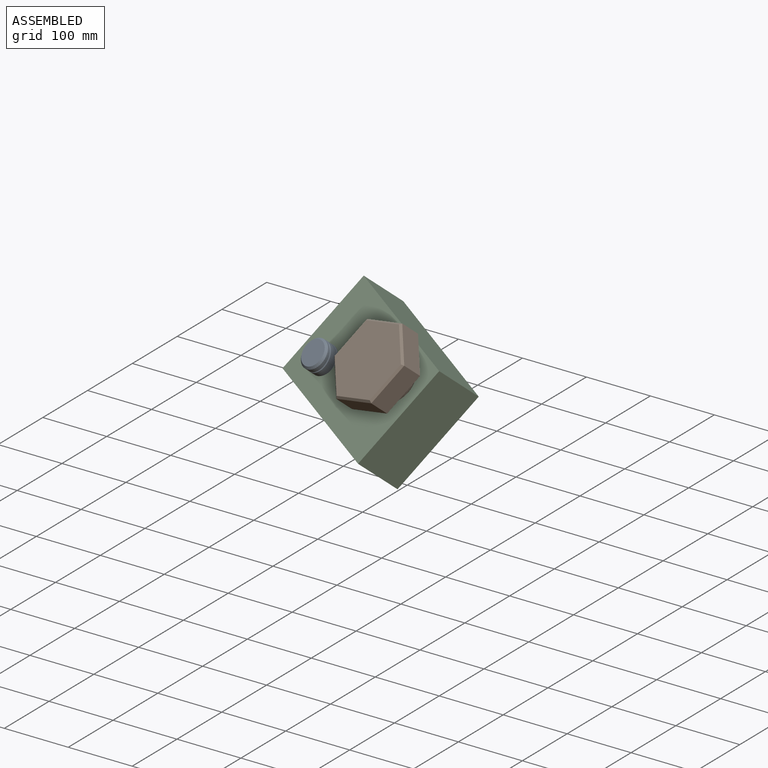
[diagram: assembled view]
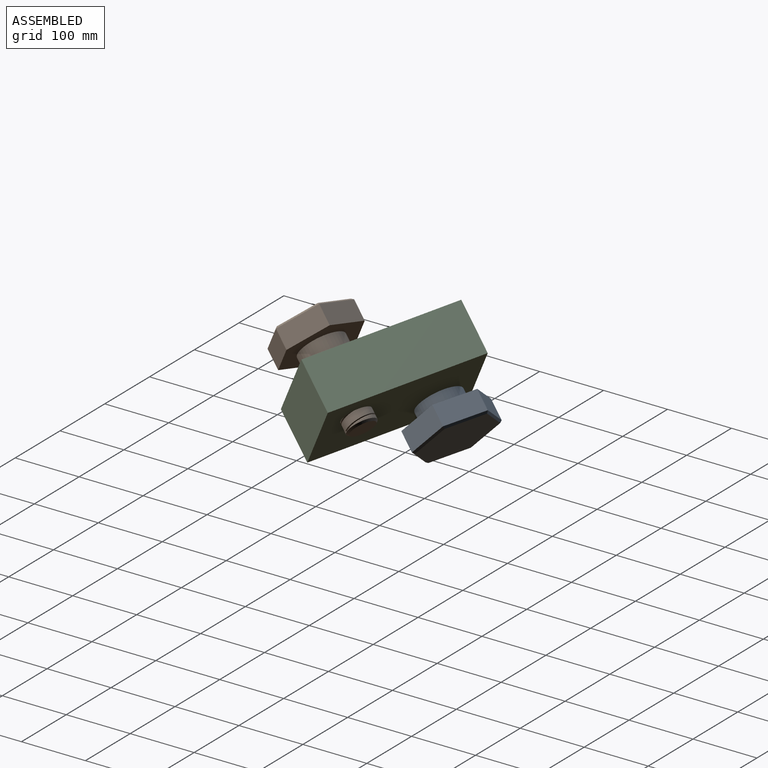
[diagram: assembled view, second angle]
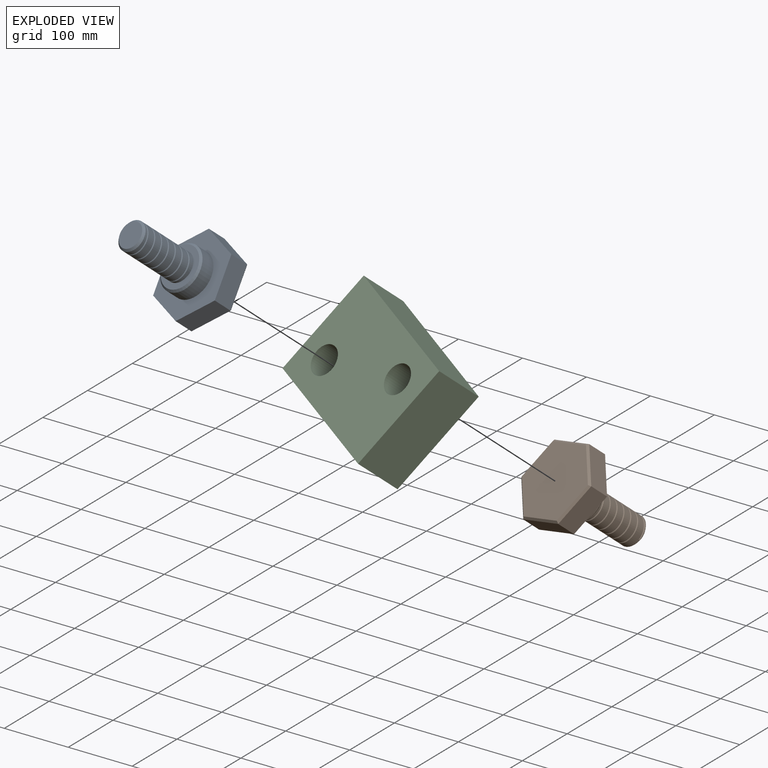
[diagram: exploded view]
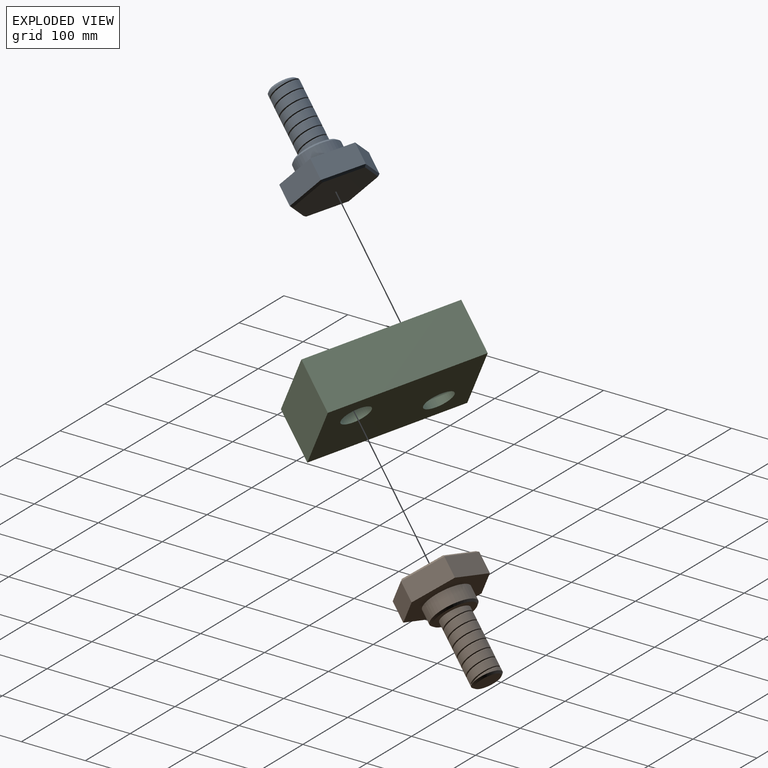
[diagram: exploded view, second angle]
ASSEMBLY  parts=3 mates=2
PART A: 25 faces, bbox 112.6x130x160 mm
  f0: cylinder r=22.5mm len=97mm, axis (0,0,-1), area 11809.6mm2, adj f1,f11,f20,f21,f22,f24
  f1: cone r=19.5mm half-angle=45deg, axis (0,0,-1), area 559.8mm2, adj f0,f12,f21,f22
  f2: plane 56.29x32.5mm, normal (0.5,-0.87,0), area 2080mm2, adj f3,f7,f8,f19
  f3: plane 65x32mm, normal (1,0,0), area 2080mm2, adj f2,f4,f8,f18
  f4: plane 56.29x32.5mm, normal (0.5,0.87,0), area 2080mm2, adj f3,f5,f8,f16
  f5: plane 56.29x32.5mm, normal (-0.5,0.87,0), area 2080mm2, adj f4,f6,f8,f14
  f6: plane 65x32mm, normal (-1,0,0), area 2080mm2, adj f5,f7,f8,f15
  f7: plane 56.29x32.5mm, normal (-0.5,-0.87,0), area 2080mm2, adj f2,f6,f8,f17
  f8: plane 130x112.58mm, normal (0,0,1), area 7128.4mm2, adj f2,f3,f4,f5,f6,f7,f10
  f9: plane 123.07x106.58mm, normal (0,0,-1), area 9838mm2, adj f14,f15,f16,f17,f18,f19
  f10: cylinder r=35mm len=70mm, axis (0,0,-1), area 4838.1mm2, adj f8,f13
  f11: plane 64x64mm, normal (0,0,1), area 1626.6mm2, adj f0,f13,f23
  f12: plane 39x39mm, normal (0,0,1), area 1194.6mm2, adj f1
  f13: cone r=32mm half-angle=45deg, axis (0,0,-1), area 893mm2, adj f10,f11
  f14: plane 56.29x34.23mm, normal (-0.35,0.61,-0.71), area 268.4mm2, adj f5,f9,f15,f16
  f15: plane 65x3mm, normal (-0.71,0,-0.71), area 268.4mm2, adj f6,f9,f14,f17
  f16: plane 56.29x34.23mm, normal (0.35,0.61,-0.71), area 268.4mm2, adj f4,f9,f14,f18
  f17: plane 56.29x34.23mm, normal (-0.35,-0.61,-0.71), area 268.4mm2, adj f7,f9,f15,f19
  f18: plane 65x3mm, normal (0.71,0,-0.71), area 268.4mm2, adj f3,f9,f16,f19
  f19: plane 56.29x34.23mm, normal (0.35,-0.61,-0.71), area 268.4mm2, adj f2,f9,f17,f18
  f20: plane 2x1.72mm, normal (0,1,0), area 1.7mm2, adj f0,f22,f23,f24
  f21: plane 1.99x1.72mm, normal (0,-1,0), area 1.7mm2, adj f0,f1,f22,f24
  f22: bspline ~98.02x45mm, area 1913.1mm2, adj f0,f1,f20,f21,f24
  f23: cylinder r=22.5mm len=17.52mm, axis (0,0,1), area 19.6mm2, adj f11,f20,f24
  f24: bspline ~97.98x45mm, area 1890.6mm2, adj f0,f20,f21,f22,f23
PART B: same geometry as A
PART C: 8 faces, bbox 230x80x160 mm
  f0: plane 160x80mm, normal (-1,0,0), area 12800mm2, adj f1,f3,f4,f5
  f1: plane 230x80mm, normal (0,0,-1), area 18400mm2, adj f0,f2,f4,f5
  f2: plane 160x80mm, normal (1,0,0), area 12800mm2, adj f1,f3,f4,f5
  f3: plane 230x80mm, normal (0,0,1), area 18400mm2, adj f0,f2,f4,f5
  f4: plane 230x160mm, normal (0,-1,0), area 33619.1mm2, adj f0,f1,f2,f3,f6,f7
  f5: plane 230x160mm, normal (0,1,0), area 33619.1mm2, adj f0,f1,f2,f3,f6,f7
  f6: cylinder r=22.5mm len=80mm, axis (0,-1,0), area 11309.7mm2, adj f4,f5
  f7: cylinder r=22.5mm len=80mm, axis (0,-1,0), area 11309.7mm2, adj f4,f5
PLACE A rot(axis=(0.08,-0.47,0.88),124.1deg) t=(-185.5,-297.67,-89.01)mm
PLACE B rot(axis=(-0.96,0.29,-0.03),130.5deg) t=(-102.25,-470.63,60.86)mm
PLACE C rot(axis=(-0.76,0.4,-0.5),49.2deg) t=(-132.44,-354.68,-40.97)mm fixed
MATE fastened C.f6 <-> B.f0  axis (-0.28,-0.71,0.65) through (-85.72,-428.03,21.98)mm
MATE revolute C.f7 <-> A.f10  axis (0.28,0.71,-0.65) through (-201.2,-338.14,-52.08)mm
